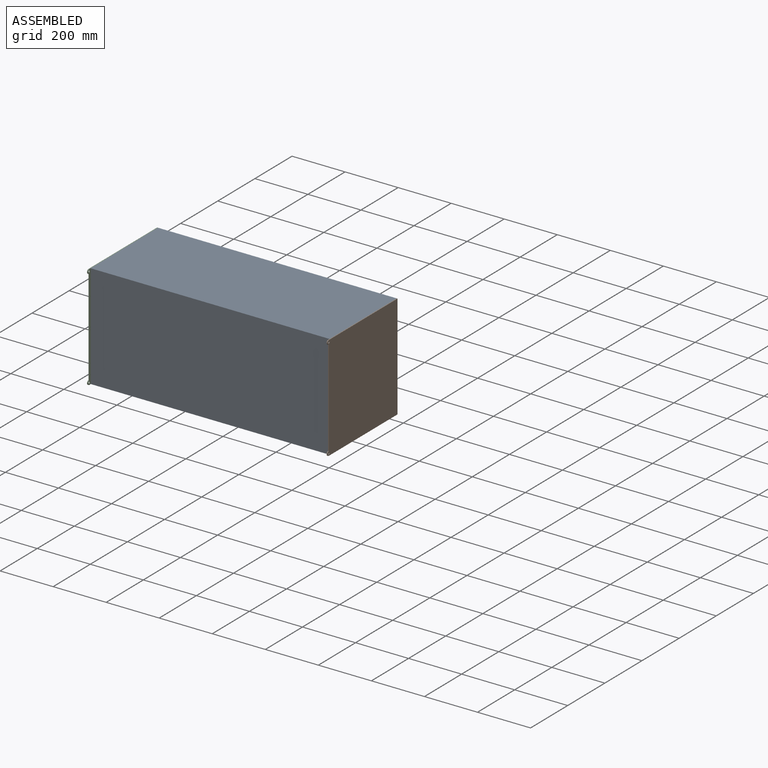
[diagram: assembled view]
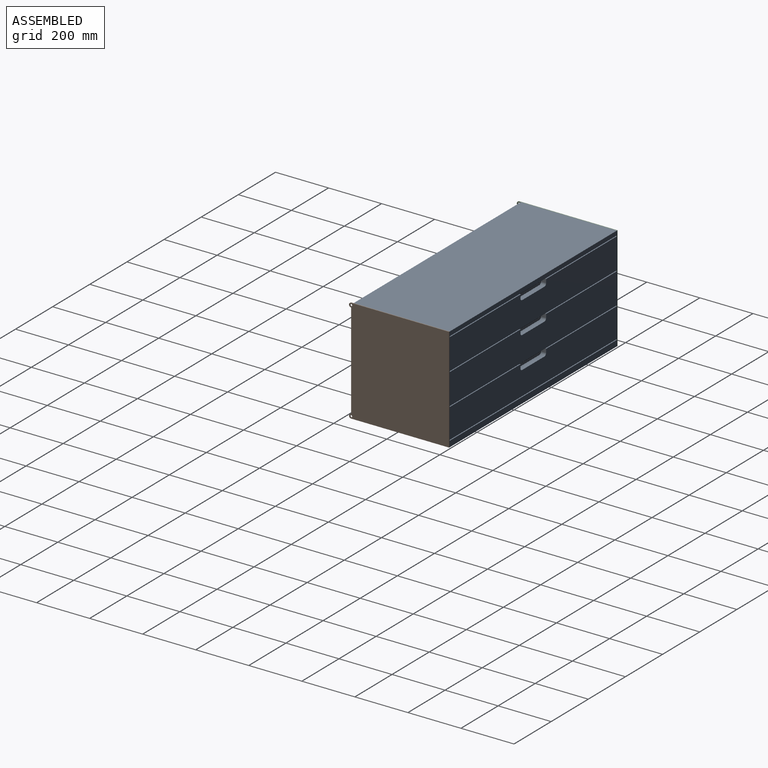
[diagram: assembled view, second angle]
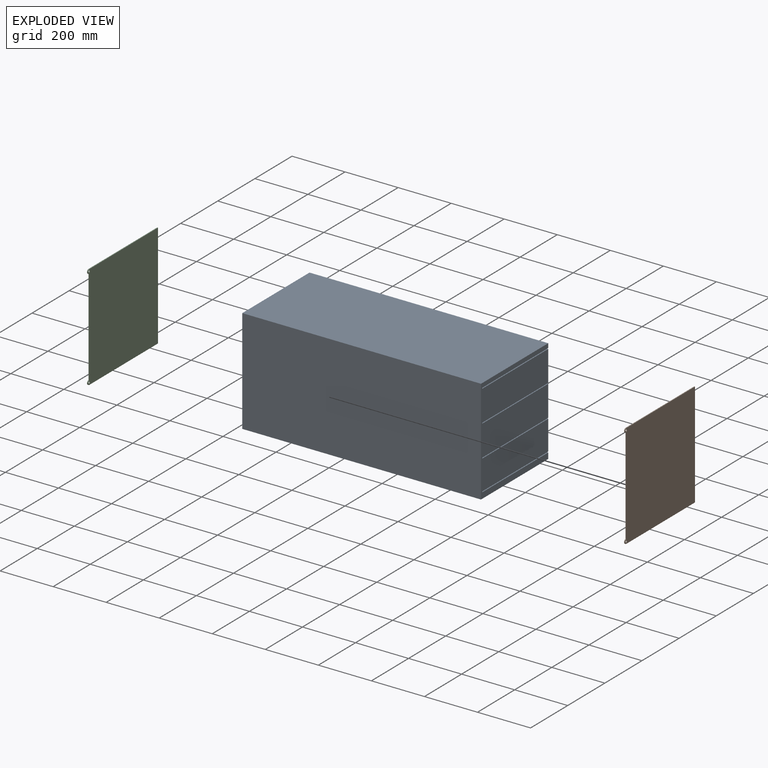
[diagram: exploded view]
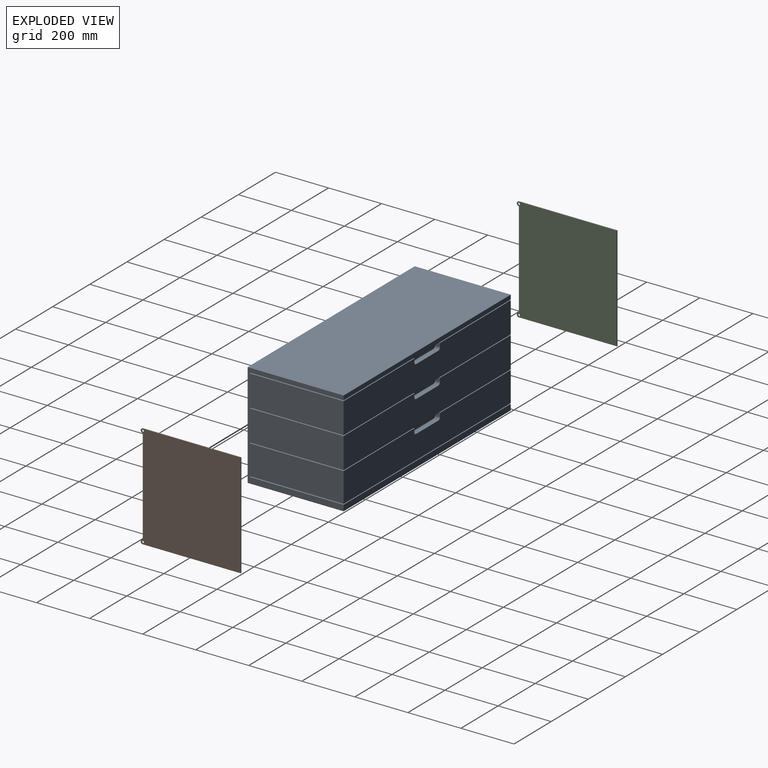
[diagram: exploded view, second angle]
ASSEMBLY  parts=3 mates=2
PART A: 70 faces, bbox 900.1x362x394.5 mm
  f0: plane 13.85x12.7mm, normal (1,0,0), area 175.9mm2, adj f8,f41,f44,f69
  f1: plane 19.05x13.85mm, normal (1,0,0), area 263.8mm2, adj f9,f34,f41,f66
  f2: plane 381.08x355.6mm, normal (0,0,1), area 18268.5mm2, adj f3,f34,f40,f43,f44,f66,f68,f69
  f3: plane 19.05x13.79mm, normal (-1,0,0), area 262.7mm2, adj f2,f5,f34,f66
  f4: cylinder r=9.07mm len=12.7mm, axis (0,1,0), area 179.2mm2, adj f6,f43,f44,f69
  f5: cylinder r=9.07mm len=19.05mm, axis (0,1,0), area 268.8mm2, adj f3,f7,f34,f66
  f6: plane 120x12.7mm, normal (0,0,1), area 1524mm2, adj f4,f8,f44,f69
  f7: plane 120x19.05mm, normal (0,0,1), area 2286mm2, adj f5,f9,f34,f66
  f8: cylinder r=8.99mm len=12.7mm, axis (0,1,0), area 177.9mm2, adj f0,f6,f44,f69
  f9: cylinder r=8.99mm len=19.05mm, axis (0,1,0), area 266.8mm2, adj f1,f7,f34,f66
  f10: cylinder r=8.99mm len=12.7mm, axis (0,1,0), area 177.9mm2, adj f12,f19,f47,f62
  f11: cylinder r=8.99mm len=19.05mm, axis (0,1,0), area 266.8mm2, adj f13,f20,f33,f61
  f12: plane 120x12.7mm, normal (0,0,1), area 1524mm2, adj f10,f14,f47,f62
  f13: plane 120x19.05mm, normal (0,0,1), area 2286mm2, adj f11,f15,f33,f61
  f14: cylinder r=9.07mm len=12.7mm, axis (0,1,0), area 179.2mm2, adj f12,f16,f47,f62
  f15: cylinder r=9.07mm len=19.05mm, axis (0,1,0), area 268.8mm2, adj f13,f17,f33,f61
  f16: plane 13.79x12.7mm, normal (-1,0,0), area 175.1mm2, adj f14,f18,f47,f62
  f17: plane 19.05x13.79mm, normal (-1,0,0), area 262.7mm2, adj f15,f18,f33,f61
  f18: plane 381.08x355.6mm, normal (0,0,1), area 18268.5mm2, adj f16,f17,f33,f40,f47,f61,f62,f63
  f19: plane 13.85x12.7mm, normal (1,0,0), area 175.9mm2, adj f10,f45,f47,f62
  f20: plane 19.05x13.85mm, normal (1,0,0), area 263.8mm2, adj f11,f33,f45,f61
  f21: plane 13.85x12.7mm, normal (1,0,0), area 175.9mm2, adj f29,f48,f51,f59
  f22: plane 19.05x13.85mm, normal (1,0,0), area 263.8mm2, adj f30,f32,f48,f57
  f23: plane 381.08x355.6mm, normal (0,0,1), area 18268.5mm2, adj f24,f32,f40,f50,f51,f57,f58,f59
  f24: plane 19.05x13.79mm, normal (-1,0,0), area 262.7mm2, adj f23,f26,f32,f57
  f25: cylinder r=9.07mm len=12.7mm, axis (0,1,0), area 179.2mm2, adj f27,f50,f51,f59
  f26: cylinder r=9.07mm len=19.05mm, axis (0,1,0), area 268.8mm2, adj f24,f28,f32,f57
  f27: plane 120x12.7mm, normal (0,0,1), area 1524mm2, adj f25,f29,f51,f59
  f28: plane 120x19.05mm, normal (0,0,1), area 2286mm2, adj f26,f30,f32,f57
  f29: cylinder r=8.99mm len=12.7mm, axis (0,1,0), area 177.9mm2, adj f21,f27,f51,f59
  f30: cylinder r=8.99mm len=19.05mm, axis (0,1,0), area 266.8mm2, adj f22,f28,f32,f57
  f31: plane 900.11x22.04mm, normal (0,1,0), area 19841.2mm2, adj f35,f39,f40,f53
  f32: plane 900.11x111.79mm, normal (0,1,0), area 97524.4mm2, adj f22,f23,f24,f26,f28,f30,f35,f40
  f33: plane 900.11x115.77mm, normal (0,1,0), area 101106.3mm2, adj f11,f13,f15,f17,f18,f20,f35,f40
  f34: plane 900.11x115.87mm, normal (0,1,0), area 101189.8mm2, adj f1,f2,f3,f5,f7,f9,f35,f40
  f35: plane 394.49x361.95mm, normal (-1,0,0), area 138268.6mm2, adj f31,f32,f33,f34,f36,f37,f38,f39
  f36: plane 900.11x394.49mm, normal (0,-1,0), area 355083mm2, adj f35,f37,f39,f40
  f37: plane 900.11x361.95mm, normal (0,0,1), area 325795.7mm2, adj f35,f36,f38,f40
  f38: plane 900.11x16.31mm, normal (0,1,0), area 14683.7mm2, adj f35,f37,f40,f46
  f39: plane 900.11x361.95mm, normal (0,0,-1), area 325795.7mm2, adj f31,f35,f36,f40
  f40: plane 394.49x361.95mm, normal (1,0,0), area 138268.6mm2, adj f2,f18,f23,f31,f32,f33,f34,f36
  f41: plane 380.98x355.6mm, normal (0,0,1), area 18265.5mm2, adj f0,f1,f34,f35,f44,f66,f67,f69
  f42: plane 900.11x355.6mm, normal (0,0,-1), area 320080mm2, adj f33,f35,f40,f44
  f43: plane 13.79x12.7mm, normal (-1,0,0), area 175.1mm2, adj f2,f4,f44,f69
  f44: plane 900.11x25.9mm, normal (0,1,0), area 5959.9mm2, adj f0,f2,f4,f6,f8,f35,f40,f41
  f45: plane 380.98x355.6mm, normal (0,0,1), area 18265.5mm2, adj f19,f20,f33,f35,f47,f60,f61,f62
  f46: plane 900.11x355.6mm, normal (0,0,-1), area 320080mm2, adj f35,f38,f40,f47
  f47: plane 900.11x25.9mm, normal (0,1,0), area 5959.9mm2, adj f10,f12,f14,f16,f18,f19,f35,f40
  f48: plane 380.98x355.6mm, normal (0,0,1), area 18265.5mm2, adj f21,f22,f32,f35,f51,f56,f57,f59
  f49: plane 900.11x355.6mm, normal (0,0,-1), area 320080mm2, adj f34,f35,f40,f51
  f50: plane 13.79x12.7mm, normal (-1,0,0), area 175.1mm2, adj f23,f25,f51,f59
  f51: plane 900.11x25.9mm, normal (0,1,0), area 5959.9mm2, adj f21,f23,f25,f27,f29,f35,f40,f48
  f52: plane 900.11x355.6mm, normal (0,0,-1), area 320080mm2, adj f32,f35,f40,f54
  f53: plane 900.11x355.6mm, normal (0,0,1), area 320080mm2, adj f31,f35,f40,f54
  f54: plane 900.11x3.18mm, normal (0,1,0), area 2857.9mm2, adj f35,f40,f52,f53
  f55: plane 862.01x323.85mm, normal (0,0,1), area 279162.7mm2, adj f56,f57,f58,f59
  f56: plane 323.85x92.74mm, normal (1,0,0), area 30034.9mm2, adj f48,f55,f57,f59
  f57: plane 862.01x92.74mm, normal (0,-1,0), area 76843.7mm2, adj f22,f23,f24,f26,f28,f30,f48,f55
  f58: plane 323.85x92.74mm, normal (-1,0,0), area 30034.9mm2, adj f23,f55,f57,f59
  f59: plane 862.01x92.74mm, normal (0,1,0), area 76843.7mm2, adj f21,f23,f25,f27,f29,f48,f50,f55
  f60: plane 323.85x96.72mm, normal (1,0,0), area 31323.6mm2, adj f45,f61,f62,f64
  f61: plane 862.01x96.72mm, normal (0,-1,0), area 80274mm2, adj f11,f13,f15,f17,f18,f20,f45,f60
  f62: plane 862.01x96.72mm, normal (0,1,0), area 80274mm2, adj f10,f12,f14,f16,f18,f19,f45,f60
  f63: plane 323.85x96.72mm, normal (-1,0,0), area 31323.6mm2, adj f18,f61,f62,f64
  f64: plane 862.01x323.85mm, normal (0,0,1), area 279162.7mm2, adj f60,f61,f62,f63
  f65: plane 862.01x323.85mm, normal (0,0,1), area 279162.7mm2, adj f66,f67,f68,f69
  f66: plane 862.01x96.82mm, normal (0,-1,0), area 80354mm2, adj f1,f2,f3,f5,f7,f9,f41,f65
  f67: plane 323.85x96.82mm, normal (1,0,0), area 31353.7mm2, adj f41,f65,f66,f69
  f68: plane 323.85x96.82mm, normal (-1,0,0), area 31353.7mm2, adj f2,f65,f66,f69
  f69: plane 862.01x96.82mm, normal (0,1,0), area 80354mm2, adj f0,f2,f4,f6,f8,f41,f43,f65
PART B: 10 faces, bbox 3.2x377.4x394.5 mm
  f0: cylinder r=7.87mm len=15.75mm, axis (-1,0,0), area 78.5mm2, adj f1,f7,f8,f9
  f1: plane 362.99x3.18mm, normal (0,-1,0), area 1152.5mm2, adj f0,f2,f8,f9
  f2: cylinder r=7.87mm len=15.75mm, axis (-1,0,0), area 78.5mm2, adj f1,f3,f8,f9
  f3: plane 369.49x3.18mm, normal (0,0,-1), area 1173.1mm2, adj f2,f4,f8,f9
  f4: plane 394.49x3.18mm, normal (0,1,0), area 1252.5mm2, adj f3,f7,f8,f9
  f5: cylinder r=4mm len=8mm, axis (-1,0,0), area 79.8mm2, adj f8,f9
  f6: cylinder r=4mm len=8mm, axis (-1,0,0), area 79.8mm2, adj f8,f9
  f7: plane 369.49x3.18mm, normal (0,0,1), area 1173.1mm2, adj f0,f4,f8,f9
  f8: plane 394.49x377.37mm, normal (1,0,0), area 145854.9mm2, adj f0,f1,f2,f3,f4,f5,f6,f7
  f9: plane 394.49x377.37mm, normal (-1,0,0), area 145854.9mm2, adj f0,f1,f2,f3,f4,f5,f6,f7
PART C: same geometry as B
PLACE A t=(-3104.78,5978.8,-2157.11)mm
PLACE B t=(-2034.3,5978.8,-4133.75)mm
PLACE C t=(-2937.59,5978.8,-4133.75)mm
MATE fastened C.f8 <-> A.f35  axis (1,0,0) through (-2934.41,-2186.69,-1202.74)mm
MATE fastened B.f9 <-> A.f40  axis (-1,0,0) through (-2034.3,-2186.69,-1202.74)mm
